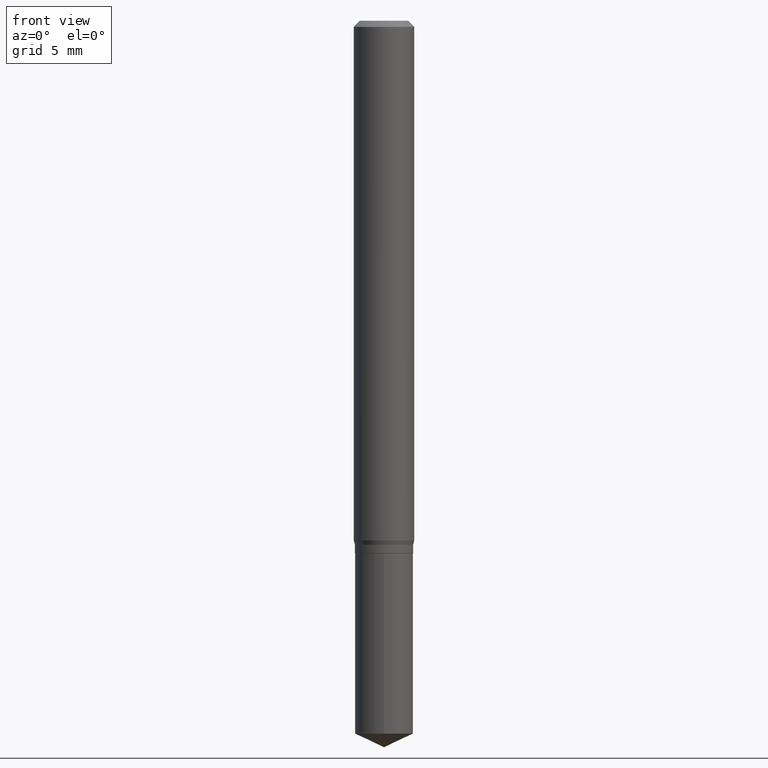
[diagram: clean part render]
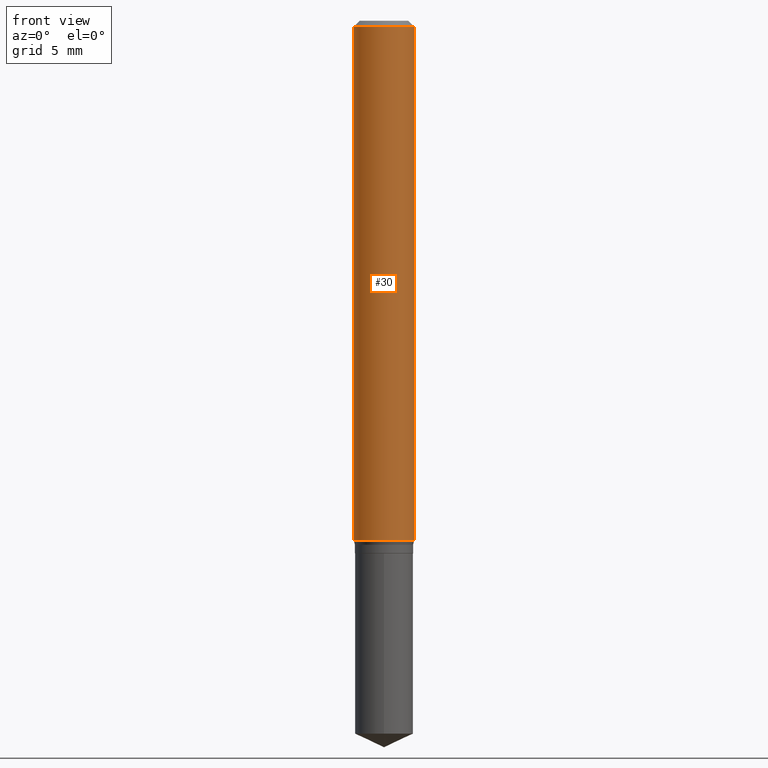
[diagram: same view with one face highlighted and labeled with its STEP entity id]
A machine part, front view. The second image highlights one B-rep face of the part: STEP entity #30.
In plain terms, the highlighted cylindrical surface (edge-blend (fillet) strip) has radius 1.5875 mm, axis along (-0, 0, 1).
Its self-contained STEP definition (entity closure, byte-faithful):
#10 = CARTESIAN_POINT ( 'NONE',  ( 3.056836007731440539E-31, -4.364351673553960451E-17, -0.01250000000000008049 ) ) ;
#27 = DIRECTION ( 'NONE',  ( -2.445468806185136597E-29, 3.491481338843145583E-15, 1.000000000000000000 ) ) ;
#30 = ADVANCED_FACE ( 'NONE', ( #441 ), #471, .T. ) ;
#53 = CARTESIAN_POINT ( 'NONE',  ( 0.06250000000000006939, -4.364351673553921624E-16, 3.047610484872463374E-30 ) ) ;
#54 = ORIENTED_EDGE ( 'NONE', *, *, #121, .F. ) ;
#60 = LINE ( 'NONE', #212, #161 ) ;
#67 = LINE ( 'NONE', #53, #119 ) ;
#119 = VECTOR ( 'NONE', #218, 39.37007874015748143 ) ;
#121 = EDGE_CURVE ( 'NONE', #203, #163, #60, .T. ) ;
#129 = VERTEX_POINT ( 'NONE', #458 ) ;
#156 = CARTESIAN_POINT ( 'NONE',  ( 0.06250000000000012490, -4.182293530895583255E-15, -1.072856475521455799 ) ) ;
#161 = VECTOR ( 'NONE', #369, 39.37007874015748143 ) ;
#163 = VERTEX_POINT ( 'NONE', #296 ) ;
#164 = DIRECTION ( 'NONE',  ( -2.445468806185136597E-29, 3.491481338843145583E-15, 1.000000000000000000 ) ) ;
#169 = ORIENTED_EDGE ( 'NONE', *, *, #339, .T. ) ;
#192 = CARTESIAN_POINT ( 'NONE',  ( -0.06250000000000012490, -3.301769153690127392E-15, -1.072856475521455799 ) ) ;
#203 = VERTEX_POINT ( 'NONE', #192 ) ;
#204 = DIRECTION ( 'NONE',  ( -2.445468806185136597E-29, 3.491481338843145583E-15, 1.000000000000000000 ) ) ;
#207 = CIRCLE ( 'NONE', #356, 0.06250000000000000000 ) ;
#212 = CARTESIAN_POINT ( 'NONE',  ( -0.06250000000000006939, 4.440892098500631092E-16, -3.074334431409319267E-30 ) ) ;
#218 = DIRECTION ( 'NONE',  ( -2.445468806185136877E-29, 3.491481338843145188E-15, 1.000000000000000000 ) ) ;
#237 = ORIENTED_EDGE ( 'NONE', *, *, #355, .T. ) ;
#255 = DIRECTION ( 'NONE',  ( 1.000000000000000000, -6.982962677686266711E-15, 4.876176775795935793E-29 ) ) ;
#257 = CARTESIAN_POINT ( 'NONE',  ( 2.623637044401447807E-29, -3.745858363540191586E-15, -1.072856475521455799 ) ) ;
#266 = VERTEX_POINT ( 'NONE', #156 ) ;
#296 = CARTESIAN_POINT ( 'NONE',  ( -0.06250000000000000000, -1.450661730287801577E-15, -0.01250000000000008049 ) ) ;
#297 = DIRECTION ( 'NONE',  ( 1.000000000000000000, -6.982962677686264344E-15, 0.000000000000000000 ) ) ;
#313 = DIRECTION ( 'NONE',  ( 1.000000000000000000, -6.982962677686266711E-15, 0.000000000000000000 ) ) ;
#333 = AXIS2_PLACEMENT_3D ( 'NONE', #257, #27, #297 ) ;
#339 = EDGE_CURVE ( 'NONE', #266, #129, #67, .T. ) ;
#355 = EDGE_CURVE ( 'NONE', #203, #266, #414, .T. ) ;
#356 = AXIS2_PLACEMENT_3D ( 'NONE', #10, #164, #313 ) ;
#369 = DIRECTION ( 'NONE',  ( -2.445468806185136877E-29, 3.491481338843145188E-15, 1.000000000000000000 ) ) ;
#398 = CARTESIAN_POINT ( 'NONE',  ( 0.000000000000000000, 0.000000000000000000, 0.000000000000000000 ) ) ;
#414 = CIRCLE ( 'NONE', #333, 0.06250000000000012490 ) ;
#423 = ORIENTED_EDGE ( 'NONE', *, *, #459, .F. ) ;
#429 = EDGE_LOOP ( 'NONE', ( #54, #237, #169, #423 ) ) ;
#441 = FACE_OUTER_BOUND ( 'NONE', #429, .T. ) ;
#458 = CARTESIAN_POINT ( 'NONE',  ( 0.06250000000000000000, -4.800786840909312308E-16, -0.01250000000000008049 ) ) ;
#459 = EDGE_CURVE ( 'NONE', #163, #129, #207, .T. ) ;
#471 = CYLINDRICAL_SURFACE ( 'NONE', #490, 0.06250000000000006939 ) ;
#490 = AXIS2_PLACEMENT_3D ( 'NONE', #398, #204, #255 ) ;